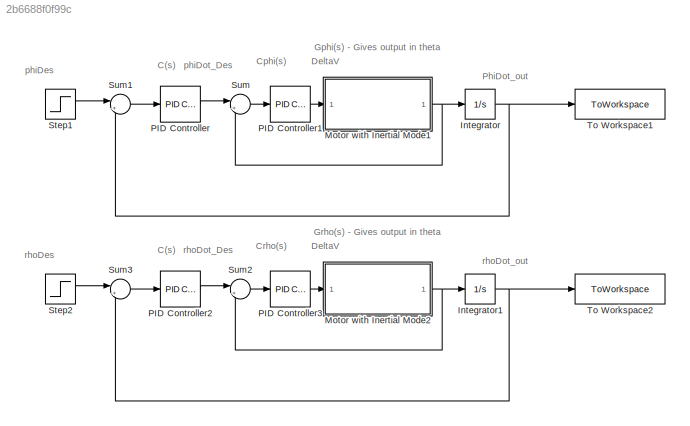
MODEL slx_2b6688f0f99c
KIND model
CONFIG AbsTol = auto
CONFIG EnableMultiTasking = off
CONFIG FixedStep = auto
CONFIG MaxStep = auto
CONFIG MinStep = auto
CONFIG RelTol = 1e-3
CONFIG SampleTimeConstraint = Unconstrained
CONFIG SolverName = VariableStepAuto
CONFIG StartTime = 0.0
CONFIG StopTime = 10.0
BLOCK [Integrator] Integrator
BLOCK [Integrator] Integrator1
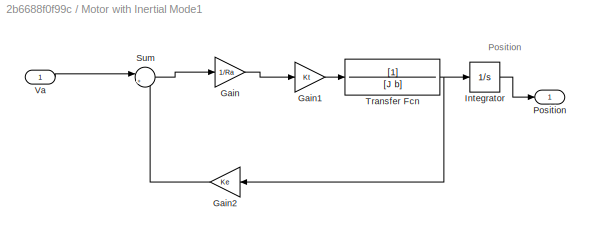
BLOCK [SubSystem] Motor with Inertial Mode1
BLOCK [Gain] Motor with Inertial Mode1/Gain
  Gain = 1/Ra
BLOCK [Gain] Motor with Inertial Mode1/Gain1
  Gain = Kt
BLOCK [Gain] Motor with Inertial Mode1/Gain2
  Gain = Ke
BLOCK [Integrator] Motor with Inertial Mode1/Integrator
BLOCK [Outport] Motor with Inertial Mode1/Position
BLOCK [Sum] Motor with Inertial Mode1/Sum
  Inputs = |+-
BLOCK [TransferFcn] Motor with Inertial Mode1/Transfer Fcn
  Denominator = [J b]
BLOCK [Inport] Motor with Inertial Mode1/Va
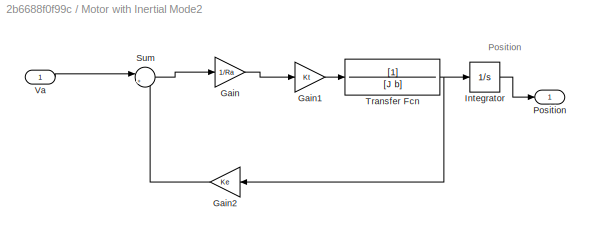
BLOCK [SubSystem] Motor with Inertial Mode2
BLOCK [Gain] Motor with Inertial Mode2/Gain
  Gain = 1/Ra
BLOCK [Gain] Motor with Inertial Mode2/Gain1
  Gain = Kt
BLOCK [Gain] Motor with Inertial Mode2/Gain2
  Gain = Ke
BLOCK [Integrator] Motor with Inertial Mode2/Integrator
BLOCK [Outport] Motor with Inertial Mode2/Position
BLOCK [Sum] Motor with Inertial Mode2/Sum
  Inputs = |+-
BLOCK [TransferFcn] Motor with Inertial Mode2/Transfer Fcn
  Denominator = [J b]
BLOCK [Inport] Motor with Inertial Mode2/Va
BLOCK [Reference] PID Controller  REF=slpidlib/PID Controller
  SourceBlock = slpidlib/PID Controller
  SourceType = PID 1dof
BLOCK [Reference] PID Controller1  REF=slpidlib/PID Controller
  SourceBlock = slpidlib/PID Controller
  SourceType = PID 1dof
BLOCK [Reference] PID Controller2  REF=slpidlib/PID Controller
  SourceBlock = slpidlib/PID Controller
  SourceType = PID 1dof
BLOCK [Reference] PID Controller3  REF=slpidlib/PID Controller
  SourceBlock = slpidlib/PID Controller
  SourceType = PID 1dof
BLOCK [Step] Step1
  SampleTime = 0
BLOCK [Step] Step2
  SampleTime = 0
BLOCK [Sum] Sum
  Inputs = |+-
BLOCK [Sum] Sum1
  Inputs = |+-
BLOCK [Sum] Sum2
  Inputs = |+-
BLOCK [Sum] Sum3
  Inputs = |+-
BLOCK [ToWorkspace] To Workspace1
  FixptAsFi = on
  MaxDataPoints = inf
  SampleTime = -1
  SaveFormat = Timeseries
  VariableName = turnSpeed
BLOCK [ToWorkspace] To Workspace2
  FixptAsFi = on
  MaxDataPoints = inf
  SampleTime = -1
  SaveFormat = Timeseries
  VariableName = steerSpeed
ANNOTATION (root): C(s)
ANNOTATION (root): Cphi(s)
ANNOTATION (root): Crho(s)
ANNOTATION (root): DeltaV
ANNOTATION (root): Gphi(s) - Gives output in theta
ANNOTATION (root): Grho(s) - Gives output in theta
ANNOTATION (root): PhiDot_out
ANNOTATION (root): phiDes
ANNOTATION (root): phiDot_Des
ANNOTATION (root): rhoDes
ANNOTATION (root): rhoDot_Des
ANNOTATION (root): rhoDot_out
ANNOTATION Motor with Inertial Mode1: Position
ANNOTATION Motor with Inertial Mode2: Position
NET Integrator1:1 -> Sum3:2, To Workspace2:1
NET Integrator:1 -> Sum1:2, To Workspace1:1
LINE Motor with Inertial Mode1/Gain1:1 -> Motor with Inertial Mode1/Transfer Fcn:1
LINE Motor with Inertial Mode1/Gain2:1 -> Motor with Inertial Mode1/Sum:2
LINE Motor with Inertial Mode1/Gain:1 -> Motor with Inertial Mode1/Gain1:1
LINE Motor with Inertial Mode1/Integrator:1 -> Motor with Inertial Mode1/Position:1
LINE Motor with Inertial Mode1/Sum:1 -> Motor with Inertial Mode1/Gain:1
NET Motor with Inertial Mode1/Transfer Fcn:1 -> Motor with Inertial Mode1/Gain2:1, Motor with Inertial Mode1/Integrator:1
LINE Motor with Inertial Mode1/Va:1 -> Motor with Inertial Mode1/Sum:1
NET Motor with Inertial Mode1:1 -> Integrator:1, Sum:2
LINE Motor with Inertial Mode2/Gain1:1 -> Motor with Inertial Mode2/Transfer Fcn:1
LINE Motor with Inertial Mode2/Gain2:1 -> Motor with Inertial Mode2/Sum:2
LINE Motor with Inertial Mode2/Gain:1 -> Motor with Inertial Mode2/Gain1:1
LINE Motor with Inertial Mode2/Integrator:1 -> Motor with Inertial Mode2/Position:1
LINE Motor with Inertial Mode2/Sum:1 -> Motor with Inertial Mode2/Gain:1
NET Motor with Inertial Mode2/Transfer Fcn:1 -> Motor with Inertial Mode2/Gain2:1, Motor with Inertial Mode2/Integrator:1
LINE Motor with Inertial Mode2/Va:1 -> Motor with Inertial Mode2/Sum:1
NET Motor with Inertial Mode2:1 -> Integrator1:1, Sum2:2
LINE PID Controller1:1 -> Motor with Inertial Mode1:1
LINE PID Controller2:1 -> Sum2:1
LINE PID Controller3:1 -> Motor with Inertial Mode2:1
LINE PID Controller:1 -> Sum:1
LINE Step1:1 -> Sum1:1
LINE Step2:1 -> Sum3:1
LINE Sum1:1 -> PID Controller:1
LINE Sum2:1 -> PID Controller3:1
LINE Sum3:1 -> PID Controller2:1
LINE Sum:1 -> PID Controller1:1
note: NET lines group one-source signal fan-out (src -> all destinations, sorted); 1:1 wires keep LINE
